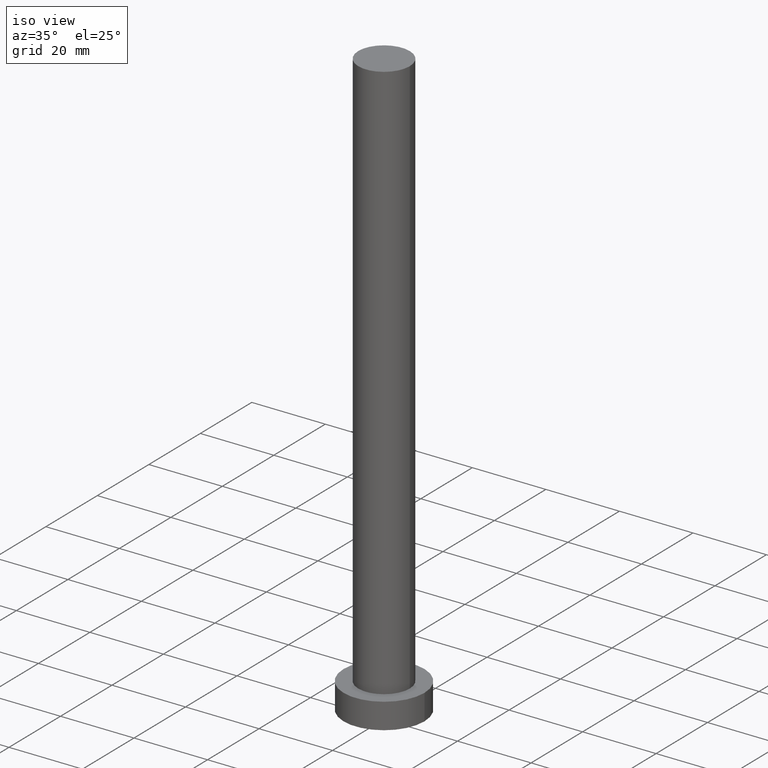
[diagram: clean part render]
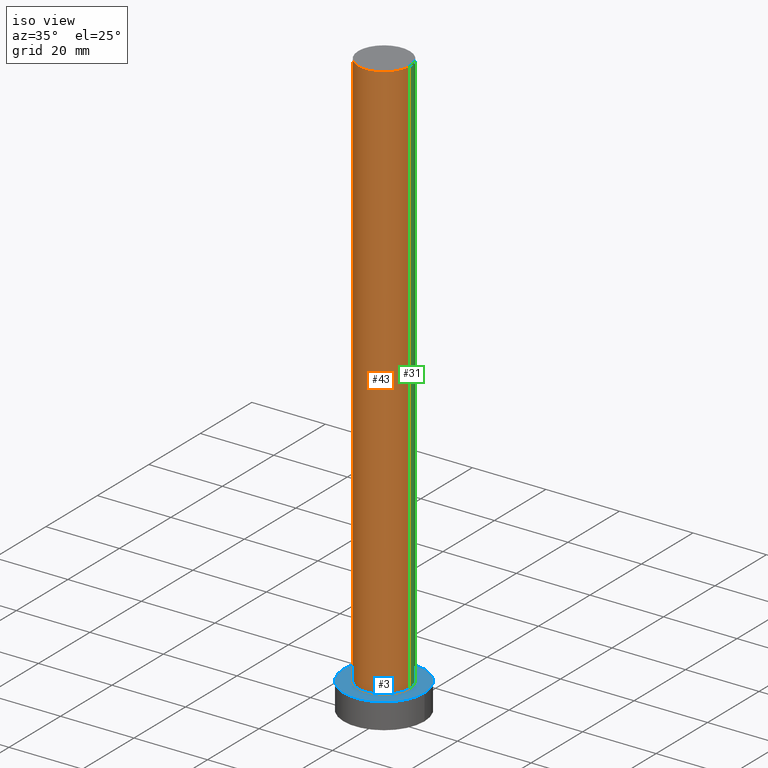
[diagram: same view with three faces highlighted in distinct colors, each labeled with its STEP entity id]
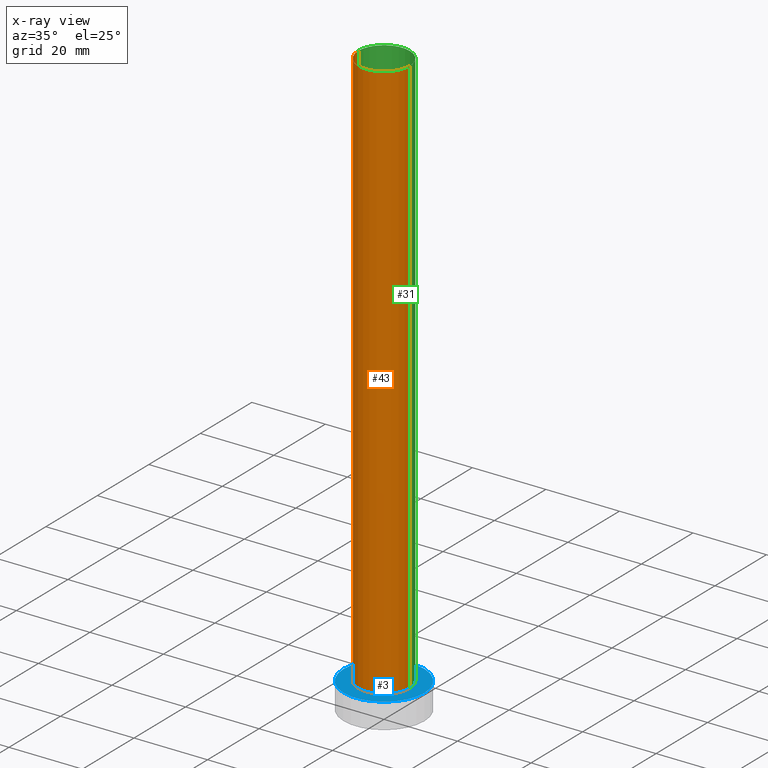
[diagram: x-ray of the same camera — body ghosted, the three highlighted faces saturated]
A machine part, iso view with three faces highlighted in distinct colors.
The next image is the same camera in x-ray (body ghosted, the three faces saturated) — at least one of them is partly hidden behind the body in this view.
Their STEP definitions:

[orange] entity #43 — the highlighted cylindrical surface (edge-blend (fillet) strip) has radius 7 mm, axis along (-0, -0, -1).
#1 = CARTESIAN_POINT ( 'NONE',  ( 7.000000000000000000, 8.572527594031473190E-16, 7.000000000000000000 ) ) ;
#9 = VECTOR ( 'NONE', #216, 1000.000000000000000 ) ;
#15 = AXIS2_PLACEMENT_3D ( 'NONE', #196, #111, #195 ) ;
#17 = CARTESIAN_POINT ( 'NONE',  ( -7.000000000000000000, 0.000000000000000000, 160.0000000000000000 ) ) ;
#26 = VERTEX_POINT ( 'NONE', #250 ) ;
#39 = CARTESIAN_POINT ( 'NONE',  ( -7.000000000000000000, 0.000000000000000000, 160.0000000000000000 ) ) ;
#43 = ADVANCED_FACE ( 'NONE', ( #50 ), #168, .T. ) ;
#44 = VECTOR ( 'NONE', #235, 1000.000000000000000 ) ;
#50 = FACE_OUTER_BOUND ( 'NONE', #247, .T. ) ;
#66 = ORIENTED_EDGE ( 'NONE', *, *, #206, .F. ) ;
#70 = AXIS2_PLACEMENT_3D ( 'NONE', #155, #102, #78 ) ;
#78 = DIRECTION ( 'NONE',  ( 1.000000000000000000, 0.000000000000000000, 0.000000000000000000 ) ) ;
#99 = CARTESIAN_POINT ( 'NONE',  ( -7.000000000000000000, 0.000000000000000000, 7.000000000000000000 ) ) ;
#102 = DIRECTION ( 'NONE',  ( 0.000000000000000000, 0.000000000000000000, 1.000000000000000000 ) ) ;
#111 = DIRECTION ( 'NONE',  ( -0.000000000000000000, -0.000000000000000000, -1.000000000000000000 ) ) ;
#114 = CARTESIAN_POINT ( 'NONE',  ( 7.000000000000000000, 8.572527594031473190E-16, 160.0000000000000000 ) ) ;
#133 = LINE ( 'NONE', #114, #44 ) ;
#134 = DIRECTION ( 'NONE',  ( 0.000000000000000000, 0.000000000000000000, 1.000000000000000000 ) ) ;
#135 = CARTESIAN_POINT ( 'NONE',  ( 0.000000000000000000, 0.000000000000000000, 7.000000000000000000 ) ) ;
#141 = ORIENTED_EDGE ( 'NONE', *, *, #220, .T. ) ;
#151 = VERTEX_POINT ( 'NONE', #99 ) ;
#155 = CARTESIAN_POINT ( 'NONE',  ( 0.000000000000000000, 0.000000000000000000, 160.0000000000000000 ) ) ;
#160 = CIRCLE ( 'NONE', #241, 7.000000000000000000 ) ;
#168 = CYLINDRICAL_SURFACE ( 'NONE', #15, 7.000000000000000000 ) ;
#173 = VERTEX_POINT ( 'NONE', #1 ) ;
#174 = ORIENTED_EDGE ( 'NONE', *, *, #249, .F. ) ;
#179 = LINE ( 'NONE', #39, #9 ) ;
#181 = DIRECTION ( 'NONE',  ( 1.000000000000000000, 0.000000000000000000, 0.000000000000000000 ) ) ;
#193 = ORIENTED_EDGE ( 'NONE', *, *, #255, .T. ) ;
#195 = DIRECTION ( 'NONE',  ( -1.000000000000000000, 0.000000000000000000, 0.000000000000000000 ) ) ;
#196 = CARTESIAN_POINT ( 'NONE',  ( 0.000000000000000000, 0.000000000000000000, 160.0000000000000000 ) ) ;
#206 = EDGE_CURVE ( 'NONE', #26, #173, #133, .T. ) ;
#213 = CIRCLE ( 'NONE', #70, 7.000000000000000000 ) ;
#216 = DIRECTION ( 'NONE',  ( -0.000000000000000000, -0.000000000000000000, -1.000000000000000000 ) ) ;
#220 = EDGE_CURVE ( 'NONE', #248, #151, #179, .T. ) ;
#235 = DIRECTION ( 'NONE',  ( -0.000000000000000000, -0.000000000000000000, -1.000000000000000000 ) ) ;
#241 = AXIS2_PLACEMENT_3D ( 'NONE', #135, #134, #181 ) ;
#247 = EDGE_LOOP ( 'NONE', ( #66, #174, #141, #193 ) ) ;
#248 = VERTEX_POINT ( 'NONE', #17 ) ;
#249 = EDGE_CURVE ( 'NONE', #248, #26, #213, .T. ) ;
#250 = CARTESIAN_POINT ( 'NONE',  ( 7.000000000000000000, 8.572527594031473190E-16, 160.0000000000000000 ) ) ;
#255 = EDGE_CURVE ( 'NONE', #151, #173, #160, .T. ) ;

[blue] entity #3 — the highlighted planar face has unit normal (0, 0, 1).
#1 = CARTESIAN_POINT ( 'NONE',  ( 7.000000000000000000, 8.572527594031473190E-16, 7.000000000000000000 ) ) ;
#3 = ADVANCED_FACE ( 'NONE', ( #145, #10 ), #228, .T. ) ;
#10 = FACE_OUTER_BOUND ( 'NONE', #32, .T. ) ;
#13 = CARTESIAN_POINT ( 'NONE',  ( 0.000000000000000000, 0.000000000000000000, 7.000000000000000000 ) ) ;
#22 = CIRCLE ( 'NONE', #115, 11.00000000000000000 ) ;
#29 = DIRECTION ( 'NONE',  ( 1.000000000000000000, 0.000000000000000000, 0.000000000000000000 ) ) ;
#30 = EDGE_LOOP ( 'NONE', ( #67, #110 ) ) ;
#32 = EDGE_LOOP ( 'NONE', ( #153, #52 ) ) ;
#52 = ORIENTED_EDGE ( 'NONE', *, *, #93, .T. ) ;
#64 = EDGE_CURVE ( 'NONE', #226, #164, #161, .T. ) ;
#67 = ORIENTED_EDGE ( 'NONE', *, *, #255, .F. ) ;
#71 = AXIS2_PLACEMENT_3D ( 'NONE', #75, #190, #29 ) ;
#75 = CARTESIAN_POINT ( 'NONE',  ( 0.000000000000000000, 0.000000000000000000, 7.000000000000000000 ) ) ;
#93 = EDGE_CURVE ( 'NONE', #164, #226, #22, .T. ) ;
#94 = AXIS2_PLACEMENT_3D ( 'NONE', #131, #251, #132 ) ;
#99 = CARTESIAN_POINT ( 'NONE',  ( -7.000000000000000000, 0.000000000000000000, 7.000000000000000000 ) ) ;
#109 = DIRECTION ( 'NONE',  ( 0.000000000000000000, 0.000000000000000000, 1.000000000000000000 ) ) ;
#110 = ORIENTED_EDGE ( 'NONE', *, *, #150, .F. ) ;
#115 = AXIS2_PLACEMENT_3D ( 'NONE', #13, #109, #191 ) ;
#117 = CARTESIAN_POINT ( 'NONE',  ( -11.00000000000000000, 0.000000000000000000, 7.000000000000000000 ) ) ;
#131 = CARTESIAN_POINT ( 'NONE',  ( 0.000000000000000000, 0.000000000000000000, 7.000000000000000000 ) ) ;
#132 = DIRECTION ( 'NONE',  ( 1.000000000000000000, 0.000000000000000000, 0.000000000000000000 ) ) ;
#134 = DIRECTION ( 'NONE',  ( 0.000000000000000000, 0.000000000000000000, 1.000000000000000000 ) ) ;
#135 = CARTESIAN_POINT ( 'NONE',  ( 0.000000000000000000, 0.000000000000000000, 7.000000000000000000 ) ) ;
#145 = FACE_BOUND ( 'NONE', #30, .T. ) ;
#150 = EDGE_CURVE ( 'NONE', #173, #151, #218, .T. ) ;
#151 = VERTEX_POINT ( 'NONE', #99 ) ;
#153 = ORIENTED_EDGE ( 'NONE', *, *, #64, .T. ) ;
#160 = CIRCLE ( 'NONE', #241, 7.000000000000000000 ) ;
#161 = CIRCLE ( 'NONE', #71, 11.00000000000000000 ) ;
#164 = VERTEX_POINT ( 'NONE', #178 ) ;
#173 = VERTEX_POINT ( 'NONE', #1 ) ;
#178 = CARTESIAN_POINT ( 'NONE',  ( 11.00000000000000000, 1.347111479062088405E-15, 7.000000000000000000 ) ) ;
#181 = DIRECTION ( 'NONE',  ( 1.000000000000000000, 0.000000000000000000, 0.000000000000000000 ) ) ;
#186 = AXIS2_PLACEMENT_3D ( 'NONE', #244, #212, #207 ) ;
#190 = DIRECTION ( 'NONE',  ( 0.000000000000000000, 0.000000000000000000, 1.000000000000000000 ) ) ;
#191 = DIRECTION ( 'NONE',  ( 1.000000000000000000, 0.000000000000000000, 0.000000000000000000 ) ) ;
#207 = DIRECTION ( 'NONE',  ( 1.000000000000000000, 0.000000000000000000, -0.000000000000000000 ) ) ;
#212 = DIRECTION ( 'NONE',  ( 0.000000000000000000, 0.000000000000000000, 1.000000000000000000 ) ) ;
#218 = CIRCLE ( 'NONE', #94, 7.000000000000000000 ) ;
#226 = VERTEX_POINT ( 'NONE', #117 ) ;
#228 = PLANE ( 'NONE',  #186 ) ;
#241 = AXIS2_PLACEMENT_3D ( 'NONE', #135, #134, #181 ) ;
#244 = CARTESIAN_POINT ( 'NONE',  ( 0.000000000000000000, 0.000000000000000000, 7.000000000000000000 ) ) ;
#251 = DIRECTION ( 'NONE',  ( 0.000000000000000000, 0.000000000000000000, 1.000000000000000000 ) ) ;
#255 = EDGE_CURVE ( 'NONE', #151, #173, #160, .T. ) ;

[green] entity #31 — the highlighted cylindrical surface (edge-blend (fillet) strip) has radius 7 mm, axis along (-0, -0, -1).
#1 = CARTESIAN_POINT ( 'NONE',  ( 7.000000000000000000, 8.572527594031473190E-16, 7.000000000000000000 ) ) ;
#5 = ORIENTED_EDGE ( 'NONE', *, *, #206, .T. ) ;
#9 = VECTOR ( 'NONE', #216, 1000.000000000000000 ) ;
#12 = CARTESIAN_POINT ( 'NONE',  ( 0.000000000000000000, 0.000000000000000000, 160.0000000000000000 ) ) ;
#17 = CARTESIAN_POINT ( 'NONE',  ( -7.000000000000000000, 0.000000000000000000, 160.0000000000000000 ) ) ;
#25 = ORIENTED_EDGE ( 'NONE', *, *, #220, .F. ) ;
#26 = VERTEX_POINT ( 'NONE', #250 ) ;
#28 = FACE_OUTER_BOUND ( 'NONE', #243, .T. ) ;
#31 = ADVANCED_FACE ( 'NONE', ( #28 ), #113, .T. ) ;
#39 = CARTESIAN_POINT ( 'NONE',  ( -7.000000000000000000, 0.000000000000000000, 160.0000000000000000 ) ) ;
#44 = VECTOR ( 'NONE', #235, 1000.000000000000000 ) ;
#51 = EDGE_CURVE ( 'NONE', #26, #248, #154, .T. ) ;
#53 = CARTESIAN_POINT ( 'NONE',  ( 0.000000000000000000, 0.000000000000000000, 160.0000000000000000 ) ) ;
#73 = ORIENTED_EDGE ( 'NONE', *, *, #150, .T. ) ;
#94 = AXIS2_PLACEMENT_3D ( 'NONE', #131, #251, #132 ) ;
#95 = ORIENTED_EDGE ( 'NONE', *, *, #51, .F. ) ;
#96 = DIRECTION ( 'NONE',  ( 0.000000000000000000, 0.000000000000000000, 1.000000000000000000 ) ) ;
#99 = CARTESIAN_POINT ( 'NONE',  ( -7.000000000000000000, 0.000000000000000000, 7.000000000000000000 ) ) ;
#113 = CYLINDRICAL_SURFACE ( 'NONE', #176, 7.000000000000000000 ) ;
#114 = CARTESIAN_POINT ( 'NONE',  ( 7.000000000000000000, 8.572527594031473190E-16, 160.0000000000000000 ) ) ;
#124 = AXIS2_PLACEMENT_3D ( 'NONE', #12, #96, #210 ) ;
#128 = DIRECTION ( 'NONE',  ( -0.000000000000000000, -0.000000000000000000, -1.000000000000000000 ) ) ;
#131 = CARTESIAN_POINT ( 'NONE',  ( 0.000000000000000000, 0.000000000000000000, 7.000000000000000000 ) ) ;
#132 = DIRECTION ( 'NONE',  ( 1.000000000000000000, 0.000000000000000000, 0.000000000000000000 ) ) ;
#133 = LINE ( 'NONE', #114, #44 ) ;
#150 = EDGE_CURVE ( 'NONE', #173, #151, #218, .T. ) ;
#151 = VERTEX_POINT ( 'NONE', #99 ) ;
#154 = CIRCLE ( 'NONE', #124, 7.000000000000000000 ) ;
#173 = VERTEX_POINT ( 'NONE', #1 ) ;
#176 = AXIS2_PLACEMENT_3D ( 'NONE', #53, #128, #214 ) ;
#179 = LINE ( 'NONE', #39, #9 ) ;
#206 = EDGE_CURVE ( 'NONE', #26, #173, #133, .T. ) ;
#210 = DIRECTION ( 'NONE',  ( 1.000000000000000000, 0.000000000000000000, 0.000000000000000000 ) ) ;
#214 = DIRECTION ( 'NONE',  ( -1.000000000000000000, 0.000000000000000000, 0.000000000000000000 ) ) ;
#216 = DIRECTION ( 'NONE',  ( -0.000000000000000000, -0.000000000000000000, -1.000000000000000000 ) ) ;
#218 = CIRCLE ( 'NONE', #94, 7.000000000000000000 ) ;
#220 = EDGE_CURVE ( 'NONE', #248, #151, #179, .T. ) ;
#235 = DIRECTION ( 'NONE',  ( -0.000000000000000000, -0.000000000000000000, -1.000000000000000000 ) ) ;
#243 = EDGE_LOOP ( 'NONE', ( #95, #5, #73, #25 ) ) ;
#248 = VERTEX_POINT ( 'NONE', #17 ) ;
#250 = CARTESIAN_POINT ( 'NONE',  ( 7.000000000000000000, 8.572527594031473190E-16, 160.0000000000000000 ) ) ;
#251 = DIRECTION ( 'NONE',  ( 0.000000000000000000, 0.000000000000000000, 1.000000000000000000 ) ) ;